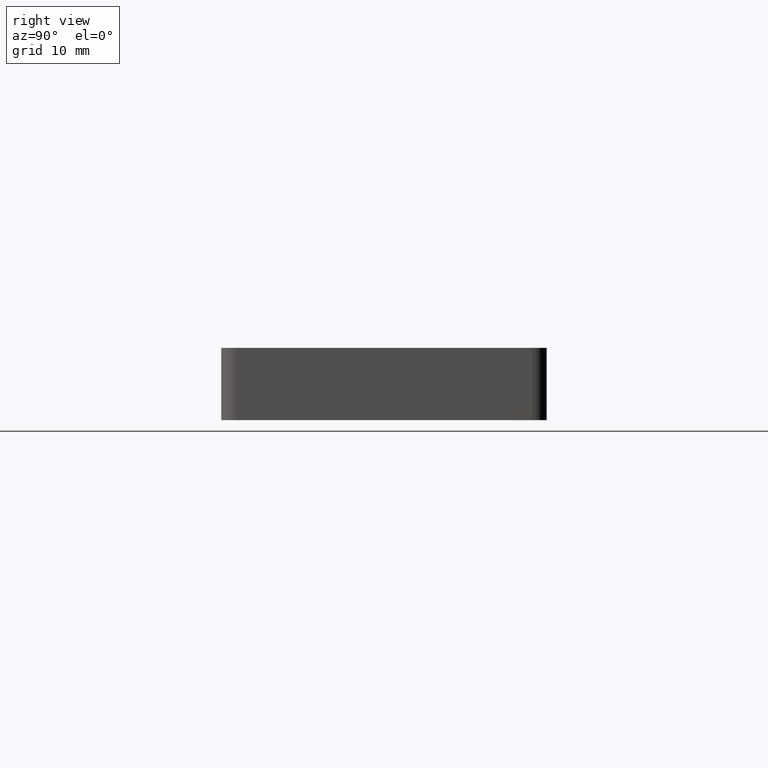
[diagram: clean part render]
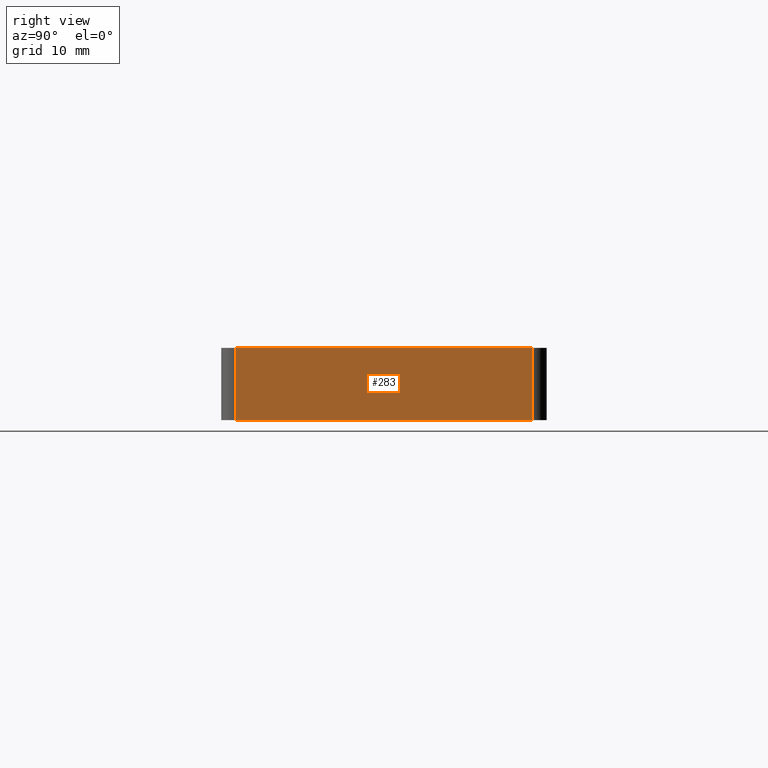
[diagram: same view with one face highlighted and labeled with its STEP entity id]
A machine part, right view. The second image highlights one B-rep face of the part: STEP entity #283.
In plain terms, the highlighted planar face has unit normal (1, 0, 0).
Its self-contained STEP definition (entity closure, byte-faithful):
#20=LINE('',#460,#36);
#26=LINE('',#477,#42);
#27=LINE('',#480,#43);
#28=LINE('',#481,#44);
#36=VECTOR('',#377,41.);
#42=VECTOR('',#395,10.);
#43=VECTOR('',#398,10.);
#44=VECTOR('',#399,41.);
#52=PLANE('',#319);
#81=FACE_OUTER_BOUND('',#108,.T.);
#108=EDGE_LOOP('',(#235,#236,#237,#238));
#151=VERTEX_POINT('',#457);
#152=VERTEX_POINT('',#459);
#156=VERTEX_POINT('',#473);
#158=VERTEX_POINT('',#479);
#178=EDGE_CURVE('',#151,#152,#20,.T.);
#187=EDGE_CURVE('',#152,#156,#26,.T.);
#188=EDGE_CURVE('',#158,#151,#27,.T.);
#189=EDGE_CURVE('',#156,#158,#28,.T.);
#235=ORIENTED_EDGE('',*,*,#187,.F.);
#236=ORIENTED_EDGE('',*,*,#178,.F.);
#237=ORIENTED_EDGE('',*,*,#188,.F.);
#238=ORIENTED_EDGE('',*,*,#189,.F.);
#283=ADVANCED_FACE('',(#81),#52,.T.);
#319=AXIS2_PLACEMENT_3D('',#478,#396,#397);
#377=DIRECTION('',(0.,-1.,0.));
#395=DIRECTION('',(0.,0.,1.));
#396=DIRECTION('center_axis',(1.,0.,0.));
#397=DIRECTION('ref_axis',(0.,1.,0.));
#398=DIRECTION('',(0.,0.,-1.));
#399=DIRECTION('',(0.,1.,0.));
#457=CARTESIAN_POINT('',(45.,20.5,0.));
#459=CARTESIAN_POINT('',(45.,-20.5,0.));
#460=CARTESIAN_POINT('',(45.,22.5,0.));
#473=CARTESIAN_POINT('',(45.,-20.5,10.));
#477=CARTESIAN_POINT('',(45.,-20.5,0.));
#478=CARTESIAN_POINT('Origin',(45.,-22.5,0.));
#479=CARTESIAN_POINT('',(45.,20.5,10.));
#480=CARTESIAN_POINT('',(45.,20.5,0.));
#481=CARTESIAN_POINT('',(45.,22.5,10.));